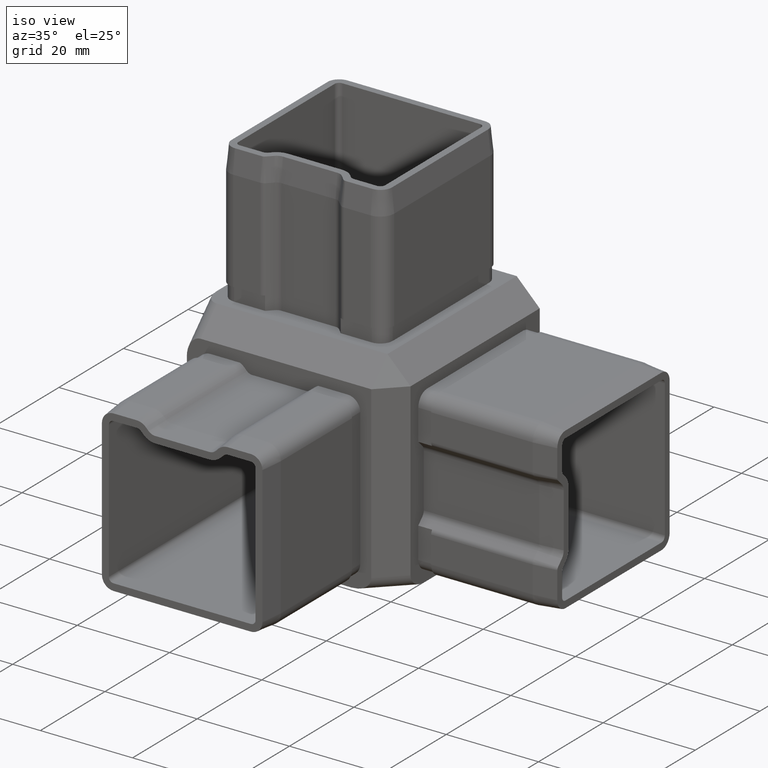
[diagram: clean part render]
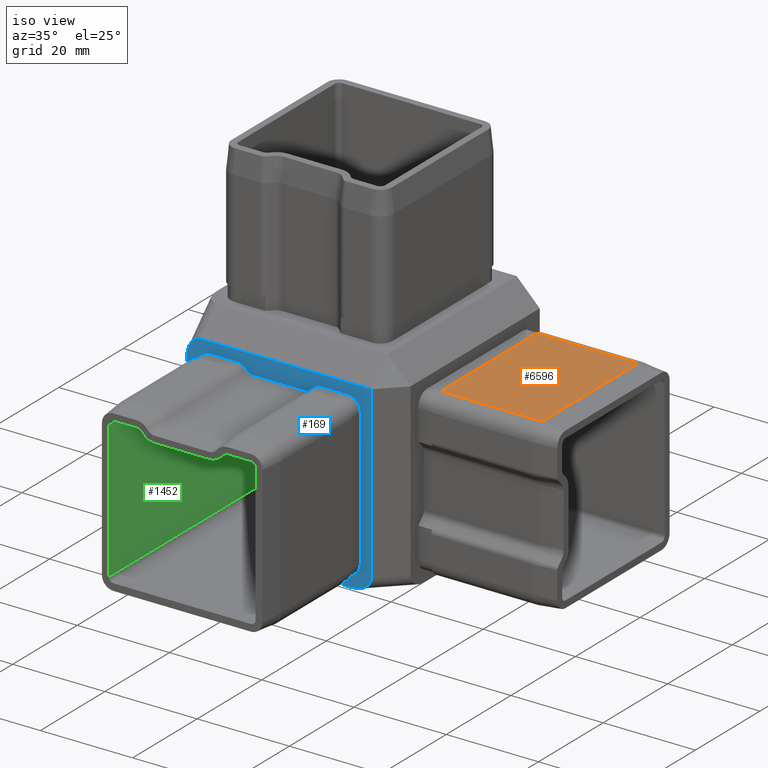
[diagram: same view with three faces highlighted in distinct colors, each labeled with its STEP entity id]
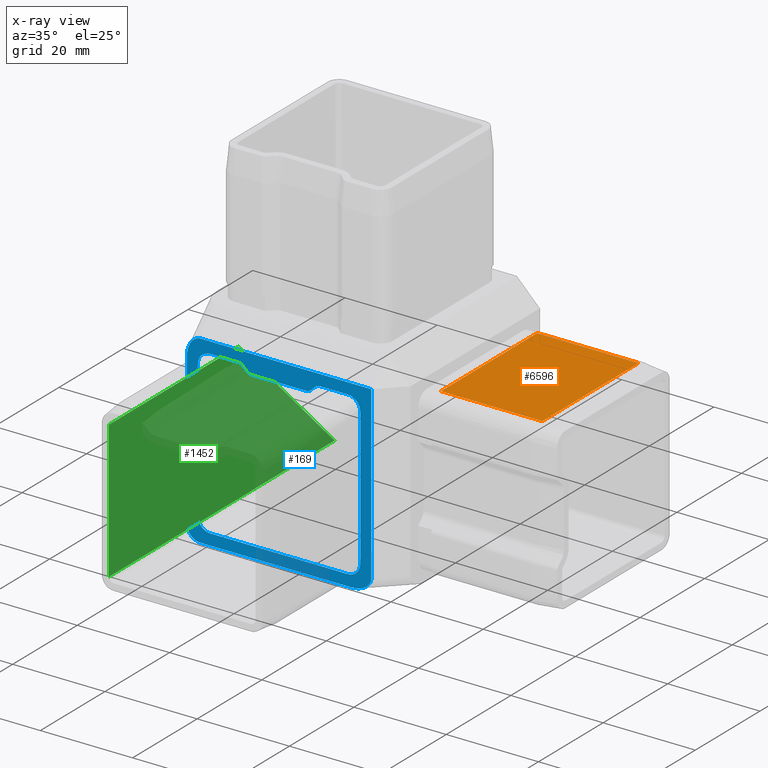
[diagram: x-ray of the same camera — body ghosted, the three highlighted faces saturated]
A machine part, iso view with three faces highlighted in distinct colors.
The next image is the same camera in x-ray (body ghosted, the three faces saturated) — at least one of them is partly hidden behind the body in this view.
Their STEP definitions:

[orange] entity #6596 — the highlighted planar face has unit normal (0, -0, 1).
#64 = VECTOR ( 'NONE', #9952, 1000.000000000000000 ) ;
#525 = EDGE_CURVE ( 'NONE', #10989, #8428, #12764, .T. ) ;
#970 = EDGE_CURVE ( 'NONE', #10989, #16887, #5686, .T. ) ;
#1115 = VECTOR ( 'NONE', #3680, 1000.000000000000000 ) ;
#1611 = LINE ( 'NONE', #16457, #14331 ) ;
#1981 = VECTOR ( 'NONE', #12605, 1000.000000000000000 ) ;
#3541 = VERTEX_POINT ( 'NONE', #15169 ) ;
#3680 = DIRECTION ( 'NONE',  ( 2.328487887217190900E-016, -1.000000000000000000, -1.164243943608595400E-016 ) ) ;
#4549 = LINE ( 'NONE', #8691, #1981 ) ;
#5686 = LINE ( 'NONE', #14351, #1115 ) ;
#6188 = AXIS2_PLACEMENT_3D ( 'NONE', #12809, #12869, #7577 ) ;
#6213 = EDGE_CURVE ( 'NONE', #16887, #3541, #4549, .T. ) ;
#6596 = ADVANCED_FACE ( 'NONE', ( #17257 ), #17027, .T. ) ;
#7299 = CARTESIAN_POINT ( 'NONE',  ( 52.50000000000000000, 17.40000000000000200, 15.39999999999998600 ) ) ;
#7577 = DIRECTION ( 'NONE',  ( 1.000000000000000000, 0.0000000000000000000, -4.440892098500625200E-016 ) ) ;
#7643 = ORIENTED_EDGE ( 'NONE', *, *, #6213, .F. ) ;
#8428 = VERTEX_POINT ( 'NONE', #12533 ) ;
#8691 = CARTESIAN_POINT ( 'NONE',  ( 52.50000000000000700, -12.40000000000000000, 15.39999999999998400 ) ) ;
#9265 = ORIENTED_EDGE ( 'NONE', *, *, #10310, .T. ) ;
#9952 = DIRECTION ( 'NONE',  ( -1.000000000000000000, -1.196361017915039200E-016, 4.440892098500625200E-016 ) ) ;
#10310 = EDGE_CURVE ( 'NONE', #8428, #3541, #1611, .T. ) ;
#10989 = VERTEX_POINT ( 'NONE', #16890 ) ;
#12533 = CARTESIAN_POINT ( 'NONE',  ( 25.50000000000000000, 17.39999999999999900, 15.39999999999999900 ) ) ;
#12605 = DIRECTION ( 'NONE',  ( -1.000000000000000000, -1.196361017915039200E-016, 4.440892098500625200E-016 ) ) ;
#12764 = LINE ( 'NONE', #7299, #64 ) ;
#12809 = CARTESIAN_POINT ( 'NONE',  ( 52.50000000000000000, 17.40000000000000200, 15.39999999999998800 ) ) ;
#12869 = DIRECTION ( 'NONE',  ( 4.440892098500625200E-016, -1.196361017915039000E-016, 1.000000000000000000 ) ) ;
#13633 = EDGE_LOOP ( 'NONE', ( #7643, #15420, #15527, #9265 ) ) ;
#14331 = VECTOR ( 'NONE', #15072, 1000.000000000000000 ) ;
#14351 = CARTESIAN_POINT ( 'NONE',  ( 47.50000000000001400, 17.40000000000000200, 15.39999999999998800 ) ) ;
#15072 = DIRECTION ( 'NONE',  ( 1.164243943608595400E-016, -1.000000000000000000, -1.164243943608595400E-016 ) ) ;
#15169 = CARTESIAN_POINT ( 'NONE',  ( 25.50000000000000400, -12.40000000000000400, 15.39999999999999700 ) ) ;
#15420 = ORIENTED_EDGE ( 'NONE', *, *, #970, .F. ) ;
#15527 = ORIENTED_EDGE ( 'NONE', *, *, #525, .T. ) ;
#16457 = CARTESIAN_POINT ( 'NONE',  ( 25.50000000000000000, 17.39999999999999900, 15.39999999999999900 ) ) ;
#16780 = CARTESIAN_POINT ( 'NONE',  ( 47.50000000000002100, -12.39999999999999900, 15.39999999999998400 ) ) ;
#16887 = VERTEX_POINT ( 'NONE', #16780 ) ;
#16890 = CARTESIAN_POINT ( 'NONE',  ( 47.50000000000001400, 17.40000000000000200, 15.39999999999998800 ) ) ;
#17027 = PLANE ( 'NONE',  #6188 ) ;
#17257 = FACE_OUTER_BOUND ( 'NONE', #13633, .T. ) ;

[blue] entity #169 — the highlighted planar face has unit normal (0, 1, 0).
#70 = CARTESIAN_POINT ( 'NONE',  ( 3.378679656440366500, -22.50000000000000400, 13.40000000000000200 ) ) ;
#128 = VERTEX_POINT ( 'NONE', #70 ) ;
#169 = ADVANCED_FACE ( 'NONE', ( #4258, #11087 ), #8371, .F. ) ;
#198 = DIRECTION ( 'NONE',  ( 1.000000000000000000, 0.0000000000000000000, 0.0000000000000000000 ) ) ;
#253 = CARTESIAN_POINT ( 'NONE',  ( 13.25735931288067000, -22.50000000000000400, -22.50000000000000000 ) ) ;
#260 = AXIS2_PLACEMENT_3D ( 'NONE', #698, #12683, #9977 ) ;
#410 = CARTESIAN_POINT ( 'NONE',  ( 5.985816296192346000, -22.50000000000000400, 15.10000000000000500 ) ) ;
#532 = CARTESIAN_POINT ( 'NONE',  ( -17.39999999999999100, -22.50000000000000400, -17.39999999999999900 ) ) ;
#629 = CIRCLE ( 'NONE', #260, 3.267683307707117000 ) ;
#698 = CARTESIAN_POINT ( 'NONE',  ( 7.353518743592470500, -22.50000000000000400, 12.13231669229289300 ) ) ;
#852 = DIRECTION ( 'NONE',  ( 0.0000000000000000000, 0.0000000000000000000, -1.000000000000000000 ) ) ;
#971 = CARTESIAN_POINT ( 'NONE',  ( -19.49999999999999300, -22.50000000000000400, 17.49999999999998200 ) ) ;
#1032 = DIRECTION ( 'NONE',  ( 0.0000000000000000000, 0.0000000000000000000, -1.000000000000000000 ) ) ;
#1053 = CIRCLE ( 'NONE', #16771, 2.699999999999992200 ) ;
#1143 = LINE ( 'NONE', #3919, #14856 ) ;
#1226 = DIRECTION ( 'NONE',  ( -0.0000000000000000000, 1.000000000000000000, -0.0000000000000000000 ) ) ;
#1581 = CARTESIAN_POINT ( 'NONE',  ( 17.49999999999998200, -22.50000000000000400, -19.49999999999999600 ) ) ;
#1597 = AXIS2_PLACEMENT_3D ( 'NONE', #11815, #8967, #1032 ) ;
#1627 = VECTOR ( 'NONE', #11031, 1000.000000000000000 ) ;
#1683 = CARTESIAN_POINT ( 'NONE',  ( 15.10000000000000900, -22.50000000000000400, -17.39999999999998400 ) ) ;
#1888 = AXIS2_PLACEMENT_3D ( 'NONE', #14412, #13253, #15846 ) ;
#1911 = CARTESIAN_POINT ( 'NONE',  ( -22.49999999999999300, -22.50000000000000400, 13.25735931288068800 ) ) ;
#1975 = CARTESIAN_POINT ( 'NONE',  ( -21.25735931288070500, -22.50000000000000400, 17.49999999999997500 ) ) ;
#2026 = AXIS2_PLACEMENT_3D ( 'NONE', #532, #14936, #5772 ) ;
#2029 = CARTESIAN_POINT ( 'NONE',  ( 15.10000000000000100, -22.50000000000000400, 12.40000000000000600 ) ) ;
#2216 = EDGE_CURVE ( 'NONE', #13157, #128, #7300, .T. ) ;
#2283 = VERTEX_POINT ( 'NONE', #14609 ) ;
#2307 = EDGE_CURVE ( 'NONE', #2283, #9310, #11453, .T. ) ;
#2404 = CIRCLE ( 'NONE', #1888, 2.700000000000001100 ) ;
#2575 = ORIENTED_EDGE ( 'NONE', *, *, #15858, .T. ) ;
#2658 = AXIS2_PLACEMENT_3D ( 'NONE', #4451, #14946, #11046 ) ;
#2686 = VERTEX_POINT ( 'NONE', #13710 ) ;
#2727 = CIRCLE ( 'NONE', #12078, 2.699999999999990400 ) ;
#2845 = CARTESIAN_POINT ( 'NONE',  ( -10.98581629619232900, -22.50000000000000400, 15.10000000000000500 ) ) ;
#2848 = VERTEX_POINT ( 'NONE', #3414 ) ;
#2869 = DIRECTION ( 'NONE',  ( 1.000000000000000000, 0.0000000000000000000, 0.0000000000000000000 ) ) ;
#2939 = VERTEX_POINT ( 'NONE', #971 ) ;
#2956 = ORIENTED_EDGE ( 'NONE', *, *, #7546, .T. ) ;
#2992 = ORIENTED_EDGE ( 'NONE', *, *, #13742, .T. ) ;
#3023 = LINE ( 'NONE', #13183, #10909 ) ;
#3368 = CARTESIAN_POINT ( 'NONE',  ( -22.49999999999999300, -22.50000000000000400, 17.49999999999998200 ) ) ;
#3414 = CARTESIAN_POINT ( 'NONE',  ( -20.09999999999998400, -22.50000000000000400, 12.39999999999998400 ) ) ;
#3466 = VERTEX_POINT ( 'NONE', #4278 ) ;
#3709 = AXIS2_PLACEMENT_3D ( 'NONE', #6437, #17232, #9257 ) ;
#3768 = ORIENTED_EDGE ( 'NONE', *, *, #13005, .T. ) ;
#3810 = ORIENTED_EDGE ( 'NONE', *, *, #5886, .T. ) ;
#3861 = VECTOR ( 'NONE', #6948, 1000.000000000000000 ) ;
#3868 = EDGE_LOOP ( 'NONE', ( #10202, #14399, #3768, #2992, #16882, #11802, #14951 ) ) ;
#3919 = CARTESIAN_POINT ( 'NONE',  ( -9.439339828220168400, -22.50000000000000400, 13.83933982822018300 ) ) ;
#3937 = VERTEX_POINT ( 'NONE', #16143 ) ;
#4053 = EDGE_LOOP ( 'NONE', ( #2956, #6642, #12827, #15306, #5881, #13150, #15693, #14435, #14857, #15313, #16004, #11516, #4870, #3810, #14699, #2575, #9658 ) ) ;
#4193 = DIRECTION ( 'NONE',  ( -0.7071067811865444600, 0.0000000000000000000, 0.7071067811865505700 ) ) ;
#4258 = FACE_BOUND ( 'NONE', #4053, .T. ) ;
#4272 = VECTOR ( 'NONE', #13605, 1000.000000000000000 ) ;
#4278 = CARTESIAN_POINT ( 'NONE',  ( -22.49999999999999300, -22.50000000000000400, -19.49999999999998200 ) ) ;
#4301 = VERTEX_POINT ( 'NONE', #6281 ) ;
#4337 = EDGE_CURVE ( 'NONE', #128, #2686, #3023, .T. ) ;
#4451 = CARTESIAN_POINT ( 'NONE',  ( -22.49999999999999300, -22.50000000000000400, 22.50000000000000000 ) ) ;
#4504 = CARTESIAN_POINT ( 'NONE',  ( -19.49999999999999300, -22.50000000000000400, 17.49999999999998200 ) ) ;
#4532 = CARTESIAN_POINT ( 'NONE',  ( -9.439339828220170100, -22.50000000000000400, 13.83933982822018600 ) ) ;
#4602 = CARTESIAN_POINT ( 'NONE',  ( 13.25735931288067000, -22.50000000000000400, -22.50000000000000000 ) ) ;
#4690 = LINE ( 'NONE', #15095, #4272 ) ;
#4733 = EDGE_CURVE ( 'NONE', #16608, #13157, #16509, .T. ) ;
#4737 = LINE ( 'NONE', #6849, #10930 ) ;
#4870 = ORIENTED_EDGE ( 'NONE', *, *, #14739, .T. ) ;
#5092 = EDGE_CURVE ( 'NONE', #8147, #15447, #16936, .T. ) ;
#5186 =( BOUNDED_CURVE ( )  B_SPLINE_CURVE ( 3, ( #253, #10761, #16117, #1581 ),
 .UNSPECIFIED., .F., .T. ) 
 B_SPLINE_CURVE_WITH_KNOTS ( ( 4, 4 ),
 ( 1.570796326794893400, 3.141592653589794000 ),
 .UNSPECIFIED. ) 
 CURVE ( )  GEOMETRIC_REPRESENTATION_ITEM ( )  RATIONAL_B_SPLINE_CURVE ( ( 1.000000000000000000, 0.8047378541243640500, 0.8047378541243640500, 1.000000000000000000 ) ) 
 REPRESENTATION_ITEM ( '' )  );
#5383 = CARTESIAN_POINT ( 'NONE',  ( -17.39999999999999100, -22.50000000000000400, -20.09999999999999800 ) ) ;
#5605 = AXIS2_PLACEMENT_3D ( 'NONE', #11654, #14294, #852 ) ;
#5772 = DIRECTION ( 'NONE',  ( 0.0000000000000000000, 0.0000000000000000000, 1.000000000000000000 ) ) ;
#5881 = ORIENTED_EDGE ( 'NONE', *, *, #7414, .F. ) ;
#5884 = DIRECTION ( 'NONE',  ( 0.0000000000000000000, 0.0000000000000000000, 1.000000000000000000 ) ) ;
#5886 = EDGE_CURVE ( 'NONE', #9340, #16332, #11714, .T. ) ;
#6114 = CIRCLE ( 'NONE', #13042, 2.999999999999999100 ) ;
#6180 = DIRECTION ( 'NONE',  ( -1.000000000000000000, 0.0000000000000000000, 0.0000000000000000000 ) ) ;
#6185 = EDGE_CURVE ( 'NONE', #7475, #16332, #4737, .T. ) ;
#6209 = DIRECTION ( 'NONE',  ( -0.7071067811865470200, 0.0000000000000000000, -0.7071067811865480200 ) ) ;
#6281 = CARTESIAN_POINT ( 'NONE',  ( -22.49999999999999300, -22.50000000000000400, 13.25735931288068800 ) ) ;
#6336 = VERTEX_POINT ( 'NONE', #13814 ) ;
#6385 = DIRECTION ( 'NONE',  ( -0.0000000000000000000, -0.0000000000000000000, -1.000000000000000000 ) ) ;
#6393 = CARTESIAN_POINT ( 'NONE',  ( -20.09999999999998700, -22.50000000000000400, -17.39999999999999100 ) ) ;
#6409 = EDGE_CURVE ( 'NONE', #7991, #16608, #629, .T. ) ;
#6437 = CARTESIAN_POINT ( 'NONE',  ( 3.378679656440366500, -22.50000000000000400, 14.90000000000000200 ) ) ;
#6595 = CARTESIAN_POINT ( 'NONE',  ( -19.49999999999999300, -22.50000000000000400, -19.49999999999999600 ) ) ;
#6642 = ORIENTED_EDGE ( 'NONE', *, *, #2307, .T. ) ;
#6830 = EDGE_CURVE ( 'NONE', #7164, #8163, #16413, .T. ) ;
#6849 = CARTESIAN_POINT ( 'NONE',  ( -17.39999999999999100, -22.50000000000000400, -20.09999999999999800 ) ) ;
#6948 = DIRECTION ( 'NONE',  ( 2.328487887217191900E-016, 0.0000000000000000000, -1.000000000000000000 ) ) ;
#7002 = VERTEX_POINT ( 'NONE', #6393 ) ;
#7112 = DIRECTION ( 'NONE',  ( -0.0000000000000000000, 1.000000000000000000, -0.0000000000000000000 ) ) ;
#7164 = VERTEX_POINT ( 'NONE', #7351 ) ;
#7248 = VECTOR ( 'NONE', #2869, 1000.000000000000000 ) ;
#7300 = CIRCLE ( 'NONE', #3709, 1.499999999999997800 ) ;
#7351 = CARTESIAN_POINT ( 'NONE',  ( -19.49999999999999300, -22.50000000000000400, -22.50000000000000000 ) ) ;
#7359 = CARTESIAN_POINT ( 'NONE',  ( -3.469446951953614200E-015, -22.50000000000000400, -20.10000000000000100 ) ) ;
#7414 = EDGE_CURVE ( 'NONE', #2686, #9844, #14142, .T. ) ;
#7475 = VERTEX_POINT ( 'NONE', #5383 ) ;
#7536 = CARTESIAN_POINT ( 'NONE',  ( 5.042917717942660100, -22.50000000000000400, 14.44291771794265800 ) ) ;
#7546 = EDGE_CURVE ( 'NONE', #2848, #2283, #2727, .T. ) ;
#7634 = VERTEX_POINT ( 'NONE', #8438 ) ;
#7913 = VECTOR ( 'NONE', #198, 1000.000000000000000 ) ;
#7991 = VERTEX_POINT ( 'NONE', #410 ) ;
#8047 = CARTESIAN_POINT ( 'NONE',  ( -17.39999999999998400, -22.50000000000000400, 15.10000000000000500 ) ) ;
#8098 = LINE ( 'NONE', #10532, #8502 ) ;
#8147 = VERTEX_POINT ( 'NONE', #2029 ) ;
#8163 = VERTEX_POINT ( 'NONE', #4602 ) ;
#8355 = CARTESIAN_POINT ( 'NONE',  ( -22.49999999999999300, -22.50000000000000400, -22.50000000000000000 ) ) ;
#8371 = PLANE ( 'NONE',  #2658 ) ;
#8438 = CARTESIAN_POINT ( 'NONE',  ( 17.49999999999998200, -22.50000000000000400, -19.49999999999999600 ) ) ;
#8502 = VECTOR ( 'NONE', #14560, 1000.000000000000000 ) ;
#8967 = DIRECTION ( 'NONE',  ( -0.0000000000000000000, 1.000000000000000000, -0.0000000000000000000 ) ) ;
#9000 = VERTEX_POINT ( 'NONE', #16689 ) ;
#9151 = EDGE_CURVE ( 'NONE', #6336, #8147, #1053, .T. ) ;
#9257 = DIRECTION ( 'NONE',  ( 0.0000000000000000000, 0.0000000000000000000, -1.000000000000000000 ) ) ;
#9282 =( BOUNDED_CURVE ( )  B_SPLINE_CURVE ( 3, ( #4504, #1975, #11327, #1911 ),
 .UNSPECIFIED., .F., .T. ) 
 B_SPLINE_CURVE_WITH_KNOTS ( ( 4, 4 ),
 ( 3.141592653589793100, 4.712388980384687900 ),
 .UNSPECIFIED. ) 
 CURVE ( )  GEOMETRIC_REPRESENTATION_ITEM ( )  RATIONAL_B_SPLINE_CURVE ( ( 1.000000000000000000, 0.8047378541243654900, 0.8047378541243654900, 1.000000000000000000 ) ) 
 REPRESENTATION_ITEM ( '' )  );
#9310 = VERTEX_POINT ( 'NONE', #2845 ) ;
#9340 = VERTEX_POINT ( 'NONE', #13788 ) ;
#9391 = CIRCLE ( 'NONE', #5605, 3.267683307707117000 ) ;
#9658 = ORIENTED_EDGE ( 'NONE', *, *, #16233, .T. ) ;
#9844 = VERTEX_POINT ( 'NONE', #4532 ) ;
#9899 = CARTESIAN_POINT ( 'NONE',  ( -22.49999999999999300, -22.50000000000000400, 22.50000000000000000 ) ) ;
#9977 = DIRECTION ( 'NONE',  ( 0.0000000000000000000, 0.0000000000000000000, -1.000000000000000000 ) ) ;
#10202 = ORIENTED_EDGE ( 'NONE', *, *, #10844, .T. ) ;
#10224 = EDGE_CURVE ( 'NONE', #7991, #6336, #10749, .T. ) ;
#10532 = CARTESIAN_POINT ( 'NONE',  ( 17.49999999999998200, -22.50000000000000400, 22.50000000000000000 ) ) ;
#10546 = DIRECTION ( 'NONE',  ( -1.000000000000000000, 0.0000000000000000000, -2.950872606362109700E-016 ) ) ;
#10749 = LINE ( 'NONE', #14779, #7248 ) ;
#10761 = CARTESIAN_POINT ( 'NONE',  ( 15.74264068711924800, -22.49999999999999600, -22.50000000000000700 ) ) ;
#10844 = EDGE_CURVE ( 'NONE', #9000, #2939, #11381, .T. ) ;
#10909 = VECTOR ( 'NONE', #10546, 1000.000000000000000 ) ;
#10930 = VECTOR ( 'NONE', #16141, 1000.000000000000000 ) ;
#11031 = DIRECTION ( 'NONE',  ( 1.000000000000000000, 0.0000000000000000000, 0.0000000000000000000 ) ) ;
#11046 = DIRECTION ( 'NONE',  ( 0.0000000000000000000, -0.0000000000000000000, 1.000000000000000000 ) ) ;
#11063 = CARTESIAN_POINT ( 'NONE',  ( 15.10000000000000100, -22.50000000000000400, 12.40000000000000600 ) ) ;
#11087 = FACE_OUTER_BOUND ( 'NONE', #3868, .T. ) ;
#11305 = DIRECTION ( 'NONE',  ( -1.000000000000000000, 0.0000000000000000000, 0.0000000000000000000 ) ) ;
#11327 = CARTESIAN_POINT ( 'NONE',  ( -22.49999999999998600, -22.50000000000000400, 15.74264068711925900 ) ) ;
#11328 = VECTOR ( 'NONE', #6385, 1000.000000000000000 ) ;
#11381 = LINE ( 'NONE', #3368, #17003 ) ;
#11453 = LINE ( 'NONE', #8047, #7913 ) ;
#11516 = ORIENTED_EDGE ( 'NONE', *, *, #5092, .T. ) ;
#11654 = CARTESIAN_POINT ( 'NONE',  ( -12.35351874359245400, -22.50000000000000400, 12.13231669229289300 ) ) ;
#11714 = LINE ( 'NONE', #15524, #13991 ) ;
#11802 = ORIENTED_EDGE ( 'NONE', *, *, #16619, .T. ) ;
#11815 = CARTESIAN_POINT ( 'NONE',  ( -8.378679656440349200, -22.50000000000000400, 14.90000000000000200 ) ) ;
#12078 = AXIS2_PLACEMENT_3D ( 'NONE', #13908, #7112, #5884 ) ;
#12119 = CARTESIAN_POINT ( 'NONE',  ( 5.042917717942657400, -22.50000000000000400, 14.44291771794265800 ) ) ;
#12569 = VECTOR ( 'NONE', #6209, 1000.000000000000000 ) ;
#12683 = DIRECTION ( 'NONE',  ( 0.0000000000000000000, -1.000000000000000000, 0.0000000000000000000 ) ) ;
#12827 = ORIENTED_EDGE ( 'NONE', *, *, #16884, .F. ) ;
#13005 = EDGE_CURVE ( 'NONE', #4301, #3466, #13430, .T. ) ;
#13042 = AXIS2_PLACEMENT_3D ( 'NONE', #6595, #15976, #14708 ) ;
#13125 = EDGE_CURVE ( 'NONE', #7634, #9000, #8098, .T. ) ;
#13150 = ORIENTED_EDGE ( 'NONE', *, *, #4337, .F. ) ;
#13157 = VERTEX_POINT ( 'NONE', #14607 ) ;
#13183 = CARTESIAN_POINT ( 'NONE',  ( 3.378679656440366500, -22.50000000000000400, 13.40000000000000200 ) ) ;
#13253 = DIRECTION ( 'NONE',  ( -0.0000000000000000000, 1.000000000000000000, -0.0000000000000000000 ) ) ;
#13430 = LINE ( 'NONE', #9899, #11328 ) ;
#13605 = DIRECTION ( 'NONE',  ( 1.164243943608596400E-016, 0.0000000000000000000, 1.000000000000000000 ) ) ;
#13710 = CARTESIAN_POINT ( 'NONE',  ( -8.378679656440349200, -22.50000000000000400, 13.40000000000000200 ) ) ;
#13742 = EDGE_CURVE ( 'NONE', #3466, #7164, #6114, .T. ) ;
#13788 = CARTESIAN_POINT ( 'NONE',  ( 12.40000000000000400, -22.50000000000000400, -20.10000000000000100 ) ) ;
#13796 = EDGE_CURVE ( 'NONE', #2939, #4301, #9282, .T. ) ;
#13814 = CARTESIAN_POINT ( 'NONE',  ( 12.40000000000001500, -22.50000000000000400, 15.10000000000000500 ) ) ;
#13908 = CARTESIAN_POINT ( 'NONE',  ( -17.39999999999999100, -22.50000000000000400, 12.40000000000001300 ) ) ;
#13991 = VECTOR ( 'NONE', #6180, 1000.000000000000000 ) ;
#14142 = CIRCLE ( 'NONE', #1597, 1.499999999999999600 ) ;
#14269 = CIRCLE ( 'NONE', #2026, 2.699999999999997500 ) ;
#14294 = DIRECTION ( 'NONE',  ( 0.0000000000000000000, -1.000000000000000000, 0.0000000000000000000 ) ) ;
#14399 = ORIENTED_EDGE ( 'NONE', *, *, #13796, .T. ) ;
#14412 = CARTESIAN_POINT ( 'NONE',  ( 12.40000000000000700, -22.50000000000000400, -17.39999999999999900 ) ) ;
#14435 = ORIENTED_EDGE ( 'NONE', *, *, #4733, .F. ) ;
#14560 = DIRECTION ( 'NONE',  ( 0.0000000000000000000, 0.0000000000000000000, 1.000000000000000000 ) ) ;
#14607 = CARTESIAN_POINT ( 'NONE',  ( 4.439339828220187000, -22.50000000000000400, 13.83933982822018300 ) ) ;
#14609 = CARTESIAN_POINT ( 'NONE',  ( -17.39999999999998400, -22.50000000000000400, 15.10000000000000500 ) ) ;
#14699 = ORIENTED_EDGE ( 'NONE', *, *, #6185, .F. ) ;
#14708 = DIRECTION ( 'NONE',  ( 0.0000000000000000000, 0.0000000000000000000, 1.000000000000000000 ) ) ;
#14739 = EDGE_CURVE ( 'NONE', #15447, #9340, #2404, .T. ) ;
#14779 = CARTESIAN_POINT ( 'NONE',  ( -17.39999999999998400, -22.50000000000000400, 15.10000000000000500 ) ) ;
#14856 = VECTOR ( 'NONE', #4193, 1000.000000000000000 ) ;
#14857 = ORIENTED_EDGE ( 'NONE', *, *, #6409, .F. ) ;
#14936 = DIRECTION ( 'NONE',  ( -0.0000000000000000000, 1.000000000000000000, -0.0000000000000000000 ) ) ;
#14946 = DIRECTION ( 'NONE',  ( 0.0000000000000000000, 1.000000000000000000, 0.0000000000000000000 ) ) ;
#14951 = ORIENTED_EDGE ( 'NONE', *, *, #13125, .T. ) ;
#15095 = CARTESIAN_POINT ( 'NONE',  ( -20.09999999999998700, -22.50000000000000400, -17.39999999999999100 ) ) ;
#15306 = ORIENTED_EDGE ( 'NONE', *, *, #16181, .F. ) ;
#15313 = ORIENTED_EDGE ( 'NONE', *, *, #10224, .T. ) ;
#15447 = VERTEX_POINT ( 'NONE', #1683 ) ;
#15524 = CARTESIAN_POINT ( 'NONE',  ( 12.40000000000000400, -22.50000000000000400, -20.10000000000000100 ) ) ;
#15693 = ORIENTED_EDGE ( 'NONE', *, *, #2216, .F. ) ;
#15759 = CARTESIAN_POINT ( 'NONE',  ( 12.40000000000000700, -22.50000000000000400, 12.40000000000001300 ) ) ;
#15846 = DIRECTION ( 'NONE',  ( 0.0000000000000000000, 0.0000000000000000000, 1.000000000000000000 ) ) ;
#15858 = EDGE_CURVE ( 'NONE', #7475, #7002, #14269, .T. ) ;
#15923 = DIRECTION ( 'NONE',  ( 0.0000000000000000000, 0.0000000000000000000, 1.000000000000000000 ) ) ;
#15976 = DIRECTION ( 'NONE',  ( -0.0000000000000000000, -1.000000000000000000, -0.0000000000000000000 ) ) ;
#16004 = ORIENTED_EDGE ( 'NONE', *, *, #9151, .T. ) ;
#16117 = CARTESIAN_POINT ( 'NONE',  ( 17.49999999999998600, -22.49999999999999600, -21.25735931288071600 ) ) ;
#16141 = DIRECTION ( 'NONE',  ( 1.000000000000000000, -0.0000000000000000000, -1.993935029858399900E-016 ) ) ;
#16143 = CARTESIAN_POINT ( 'NONE',  ( -10.04291771794265200, -22.50000000000000400, 14.44291771794267000 ) ) ;
#16181 = EDGE_CURVE ( 'NONE', #9844, #3937, #1143, .T. ) ;
#16233 = EDGE_CURVE ( 'NONE', #7002, #2848, #4690, .T. ) ;
#16332 = VERTEX_POINT ( 'NONE', #7359 ) ;
#16413 = LINE ( 'NONE', #8355, #1627 ) ;
#16509 = LINE ( 'NONE', #7536, #12569 ) ;
#16608 = VERTEX_POINT ( 'NONE', #12119 ) ;
#16619 = EDGE_CURVE ( 'NONE', #8163, #7634, #5186, .T. ) ;
#16689 = CARTESIAN_POINT ( 'NONE',  ( 17.49999999999998200, -22.50000000000000400, 17.49999999999998200 ) ) ;
#16771 = AXIS2_PLACEMENT_3D ( 'NONE', #15759, #1226, #15923 ) ;
#16882 = ORIENTED_EDGE ( 'NONE', *, *, #6830, .T. ) ;
#16884 = EDGE_CURVE ( 'NONE', #3937, #9310, #9391, .T. ) ;
#16936 = LINE ( 'NONE', #11063, #3861 ) ;
#17003 = VECTOR ( 'NONE', #11305, 1000.000000000000000 ) ;
#17232 = DIRECTION ( 'NONE',  ( -0.0000000000000000000, 1.000000000000000000, -0.0000000000000000000 ) ) ;

[green] entity #1452 — the highlighted planar face has unit normal (1, 0, 0).
#317 = LINE ( 'NONE', #5168, #13213 ) ;
#951 = LINE ( 'NONE', #7622, #9238 ) ;
#989 = PLANE ( 'NONE',  #1641 ) ;
#992 = EDGE_CURVE ( 'NONE', #9005, #16930, #7949, .T. ) ;
#1035 = VERTEX_POINT ( 'NONE', #1250 ) ;
#1176 = ORIENTED_EDGE ( 'NONE', *, *, #4312, .T. ) ;
#1250 = CARTESIAN_POINT ( 'NONE',  ( -18.39999999999999100, -52.50000000000000700, 12.40000000000000200 ) ) ;
#1452 = ADVANCED_FACE ( 'NONE', ( #3182 ), #989, .T. ) ;
#1641 = AXIS2_PLACEMENT_3D ( 'NONE', #12895, #7485, #11371 ) ;
#2440 = DIRECTION ( 'NONE',  ( 0.0000000000000000000, 0.0000000000000000000, -1.000000000000000000 ) ) ;
#3182 = FACE_OUTER_BOUND ( 'NONE', #8030, .T. ) ;
#3720 = LINE ( 'NONE', #13964, #11590 ) ;
#3906 = CARTESIAN_POINT ( 'NONE',  ( -18.39999999999999100, 17.39999999999999900, -17.39999999999999100 ) ) ;
#4312 = EDGE_CURVE ( 'NONE', #1035, #16930, #951, .T. ) ;
#4697 = ORIENTED_EDGE ( 'NONE', *, *, #14438, .T. ) ;
#5168 = CARTESIAN_POINT ( 'NONE',  ( -18.39999999999999100, 32.43599564173221200, -32.43599564173220500 ) ) ;
#7120 = VERTEX_POINT ( 'NONE', #16415 ) ;
#7485 = DIRECTION ( 'NONE',  ( 1.000000000000000000, 0.0000000000000000000, 0.0000000000000000000 ) ) ;
#7622 = CARTESIAN_POINT ( 'NONE',  ( -18.39999999999999100, -52.50000000000000700, 12.40000000000000200 ) ) ;
#7949 = LINE ( 'NONE', #3906, #13592 ) ;
#8030 = EDGE_LOOP ( 'NONE', ( #12454, #1176, #13334, #4697 ) ) ;
#9005 = VERTEX_POINT ( 'NONE', #16510 ) ;
#9238 = VECTOR ( 'NONE', #2440, 1000.000000000000000 ) ;
#11294 = EDGE_CURVE ( 'NONE', #7120, #1035, #3720, .T. ) ;
#11371 = DIRECTION ( 'NONE',  ( 0.0000000000000000000, 0.0000000000000000000, -1.000000000000000000 ) ) ;
#11590 = VECTOR ( 'NONE', #15289, 1000.000000000000000 ) ;
#11828 = DIRECTION ( 'NONE',  ( 0.0000000000000000000, -1.000000000000000000, -1.541976423090495100E-016 ) ) ;
#12454 = ORIENTED_EDGE ( 'NONE', *, *, #11294, .T. ) ;
#12895 = CARTESIAN_POINT ( 'NONE',  ( -18.39999999999999100, 32.43599564173221200, -32.43599564173220500 ) ) ;
#13213 = VECTOR ( 'NONE', #14455, 1000.000000000000000 ) ;
#13334 = ORIENTED_EDGE ( 'NONE', *, *, #992, .F. ) ;
#13592 = VECTOR ( 'NONE', #11828, 1000.000000000000000 ) ;
#13964 = CARTESIAN_POINT ( 'NONE',  ( -18.39999999999999100, -12.40000000000000700, 12.40000000000000700 ) ) ;
#14238 = CARTESIAN_POINT ( 'NONE',  ( -18.39999999999999100, -52.50000000000000700, -17.40000000000000600 ) ) ;
#14438 = EDGE_CURVE ( 'NONE', #9005, #7120, #317, .T. ) ;
#14455 = DIRECTION ( 'NONE',  ( 0.0000000000000000000, -0.7071067811865475700, 0.7071067811865474600 ) ) ;
#15289 = DIRECTION ( 'NONE',  ( 0.0000000000000000000, -1.000000000000000000, -1.541976423090495100E-016 ) ) ;
#16415 = CARTESIAN_POINT ( 'NONE',  ( -18.39999999999999100, -12.40000000000000700, 12.40000000000000700 ) ) ;
#16510 = CARTESIAN_POINT ( 'NONE',  ( -18.39999999999999100, 17.39999999999999900, -17.39999999999999100 ) ) ;
#16930 = VERTEX_POINT ( 'NONE', #14238 ) ;